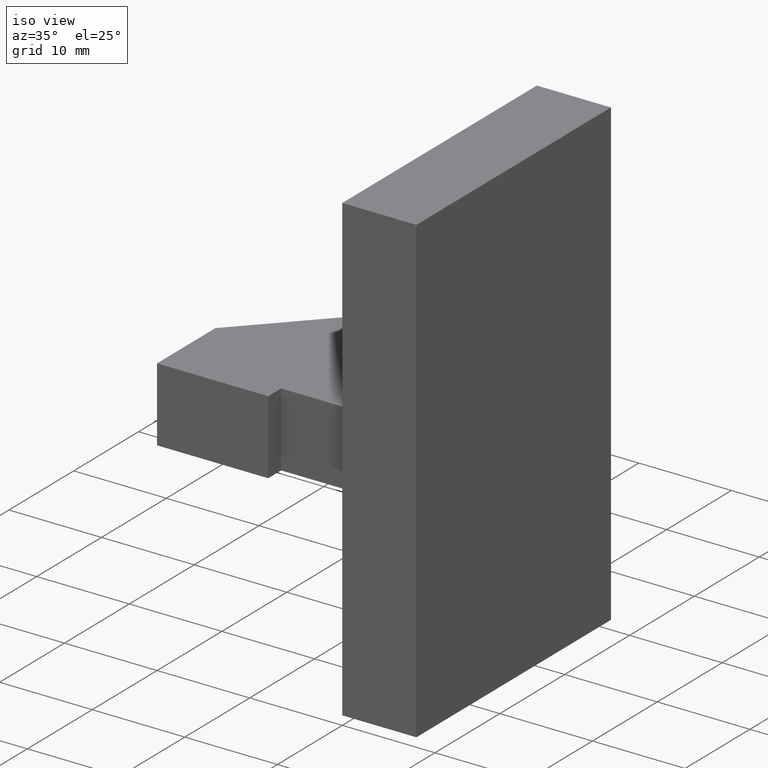
[diagram: clean part render]
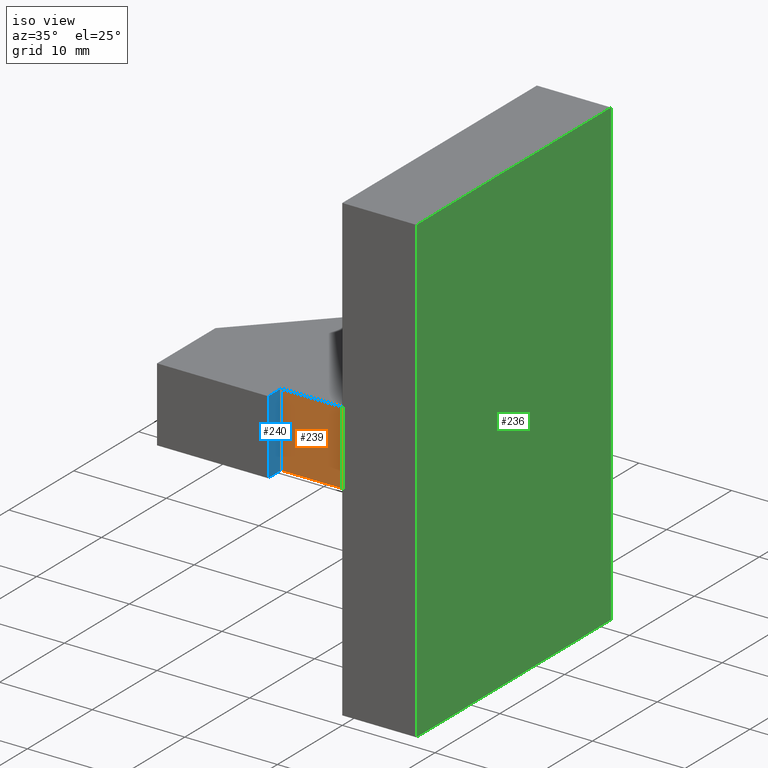
[diagram: same view with three faces highlighted in distinct colors, each labeled with its STEP entity id]
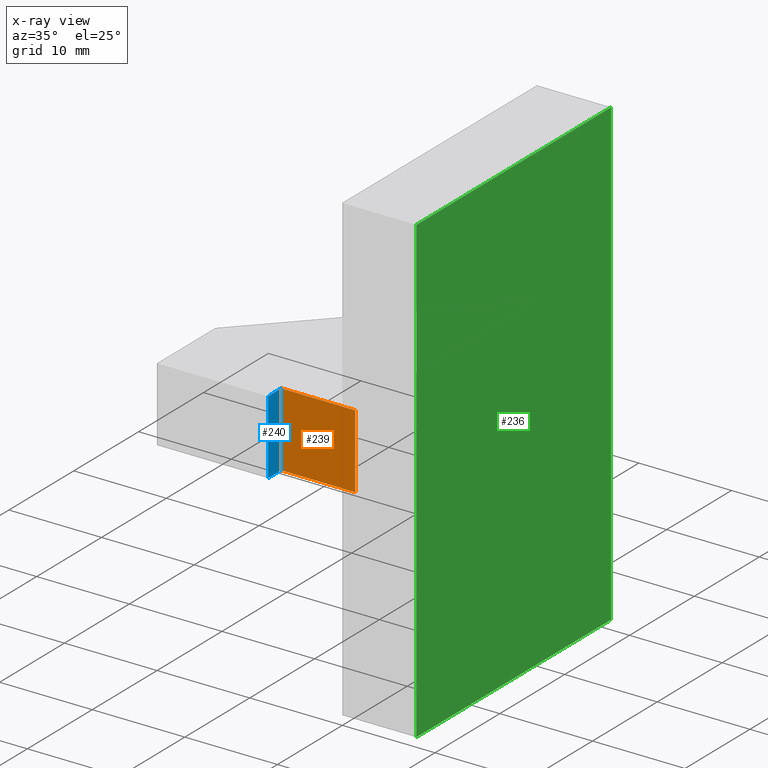
[diagram: x-ray of the same camera — body ghosted, the three highlighted faces saturated]
A machine part, iso view with three faces highlighted in distinct colors.
The next image is the same camera in x-ray (body ghosted, the three faces saturated) — at least one of them is partly hidden behind the body in this view.
Their STEP definitions:

[orange] entity #239 — the highlighted planar face has unit normal (0, -1, 0).
#25=FACE_OUTER_BOUND('',#38,.T.);
#38=EDGE_LOOP('',(#196,#197,#198,#199));
#44=LINE('',#345,#75);
#63=LINE('',#383,#94);
#67=LINE('',#391,#98);
#68=LINE('',#392,#99);
#75=VECTOR('',#285,10.);
#94=VECTOR('',#316,10.);
#98=VECTOR('',#324,10.);
#99=VECTOR('',#325,10.);
#106=VERTEX_POINT('',#342);
#107=VERTEX_POINT('',#344);
#120=VERTEX_POINT('',#382);
#122=VERTEX_POINT('',#390);
#126=EDGE_CURVE('',#106,#107,#44,.T.);
#145=EDGE_CURVE('',#120,#107,#63,.T.);
#149=EDGE_CURVE('',#106,#122,#67,.T.);
#150=EDGE_CURVE('',#122,#120,#68,.T.);
#196=ORIENTED_EDGE('',*,*,#149,.T.);
#197=ORIENTED_EDGE('',*,*,#150,.T.);
#198=ORIENTED_EDGE('',*,*,#145,.T.);
#199=ORIENTED_EDGE('',*,*,#126,.F.);
#226=PLANE('',#275);
#239=ADVANCED_FACE('',(#25),#226,.T.);
#275=AXIS2_PLACEMENT_3D('',#389,#322,#323);
#285=DIRECTION('',(0.,0.,-1.));
#316=DIRECTION('',(1.,4.85722573273506E-16,0.));
#322=DIRECTION('center_axis',(4.85722573273506E-16,-1.,0.));
#323=DIRECTION('ref_axis',(0.,0.,-1.));
#324=DIRECTION('',(-1.,-4.85722573273506E-16,0.));
#325=DIRECTION('',(0.,0.,-1.));
#342=CARTESIAN_POINT('',(2.22044604925031E-15,2.00000000000001,4.));
#344=CARTESIAN_POINT('',(2.22044604925031E-15,2.00000000000001,-4.));
#345=CARTESIAN_POINT('',(2.22044604925031E-15,2.00000000000001,0.));
#382=CARTESIAN_POINT('',(-8.,2.00000000000001,-4.));
#383=CARTESIAN_POINT('',(2.22044604925031E-15,2.00000000000001,-4.));
#389=CARTESIAN_POINT('Origin',(2.22044604925031E-15,2.00000000000001,0.));
#390=CARTESIAN_POINT('',(-8.,2.00000000000001,4.));
#391=CARTESIAN_POINT('',(2.22044604925031E-15,2.00000000000001,4.));
#392=CARTESIAN_POINT('',(-8.,2.00000000000001,0.));

[blue] entity #240 — the highlighted planar face has unit normal (1, 0, 0).
#26=FACE_OUTER_BOUND('',#39,.T.);
#39=EDGE_LOOP('',(#200,#201,#202,#203));
#64=LINE('',#384,#95);
#68=LINE('',#392,#99);
#69=LINE('',#395,#100);
#70=LINE('',#396,#101);
#95=VECTOR('',#317,10.);
#99=VECTOR('',#325,10.);
#100=VECTOR('',#328,10.);
#101=VECTOR('',#329,10.);
#118=VERTEX_POINT('',#377);
#120=VERTEX_POINT('',#382);
#122=VERTEX_POINT('',#390);
#123=VERTEX_POINT('',#394);
#146=EDGE_CURVE('',#118,#120,#64,.T.);
#150=EDGE_CURVE('',#122,#120,#68,.T.);
#151=EDGE_CURVE('',#122,#123,#69,.T.);
#152=EDGE_CURVE('',#123,#118,#70,.T.);
#200=ORIENTED_EDGE('',*,*,#151,.T.);
#201=ORIENTED_EDGE('',*,*,#152,.T.);
#202=ORIENTED_EDGE('',*,*,#146,.T.);
#203=ORIENTED_EDGE('',*,*,#150,.F.);
#227=PLANE('',#276);
#240=ADVANCED_FACE('',(#26),#227,.T.);
#276=AXIS2_PLACEMENT_3D('',#393,#326,#327);
#317=DIRECTION('',(0.,1.,0.));
#325=DIRECTION('',(0.,0.,-1.));
#326=DIRECTION('center_axis',(1.,0.,0.));
#327=DIRECTION('ref_axis',(0.,0.,-1.));
#328=DIRECTION('',(0.,-1.,0.));
#329=DIRECTION('',(0.,0.,-1.));
#377=CARTESIAN_POINT('',(-8.,7.49400541621981E-15,-4.));
#382=CARTESIAN_POINT('',(-8.,2.00000000000001,-4.));
#384=CARTESIAN_POINT('',(-8.,2.00000000000001,-4.));
#390=CARTESIAN_POINT('',(-8.,2.00000000000001,4.));
#392=CARTESIAN_POINT('',(-8.,2.00000000000001,0.));
#393=CARTESIAN_POINT('Origin',(-8.,2.00000000000001,0.));
#394=CARTESIAN_POINT('',(-8.,7.49400541621981E-15,4.));
#395=CARTESIAN_POINT('',(-8.,2.00000000000001,4.));
#396=CARTESIAN_POINT('',(-8.,7.49400541621981E-15,0.));

[green] entity #236 — the highlighted planar face has unit normal (1, 0, -0).
#22=FACE_OUTER_BOUND('',#35,.T.);
#35=EDGE_LOOP('',(#182,#183,#184,#185));
#51=LINE('',#360,#82);
#54=LINE('',#365,#85);
#57=LINE('',#370,#88);
#59=LINE('',#373,#90);
#82=VECTOR('',#294,10.);
#85=VECTOR('',#299,10.);
#88=VECTOR('',#304,10.);
#90=VECTOR('',#308,10.);
#113=VERTEX_POINT('',#358);
#114=VERTEX_POINT('',#359);
#115=VERTEX_POINT('',#364);
#116=VERTEX_POINT('',#369);
#133=EDGE_CURVE('',#113,#114,#51,.T.);
#136=EDGE_CURVE('',#114,#115,#54,.T.);
#139=EDGE_CURVE('',#115,#116,#57,.T.);
#141=EDGE_CURVE('',#116,#113,#59,.T.);
#182=ORIENTED_EDGE('',*,*,#133,.F.);
#183=ORIENTED_EDGE('',*,*,#141,.F.);
#184=ORIENTED_EDGE('',*,*,#139,.F.);
#185=ORIENTED_EDGE('',*,*,#136,.F.);
#223=PLANE('',#272);
#236=ADVANCED_FACE('',(#22),#223,.T.);
#272=AXIS2_PLACEMENT_3D('',#374,#309,#310);
#294=DIRECTION('',(-3.96508223080413E-16,1.,1.48029736616688E-16));
#299=DIRECTION('',(3.52170046973666E-32,-8.88178419700125E-17,-1.));
#304=DIRECTION('',(3.96508223080413E-16,-1.,1.48029736616688E-16));
#308=DIRECTION('',(0.,0.,1.));
#309=DIRECTION('center_axis',(1.,3.96508223080413E-16,-1.60631591574854E-32));
#310=DIRECTION('ref_axis',(-1.60631591574854E-32,0.,-1.));
#358=CARTESIAN_POINT('',(8.,4.00473305311217E-15,25.));
#359=CARTESIAN_POINT('',(7.99999999999999,30.,25.));
#360=CARTESIAN_POINT('',(7.99999999999999,30.,25.));
#364=CARTESIAN_POINT('',(7.99999999999999,30.,-25.));
#365=CARTESIAN_POINT('',(7.99999999999999,30.,-25.));
#369=CARTESIAN_POINT('',(8.,4.00473305311217E-15,-25.));
#370=CARTESIAN_POINT('',(8.,4.00473305311217E-15,-25.));
#373=CARTESIAN_POINT('',(8.,4.00473305311217E-15,25.));
#374=CARTESIAN_POINT('Origin',(8.,15.,5.55111512312578E-16));